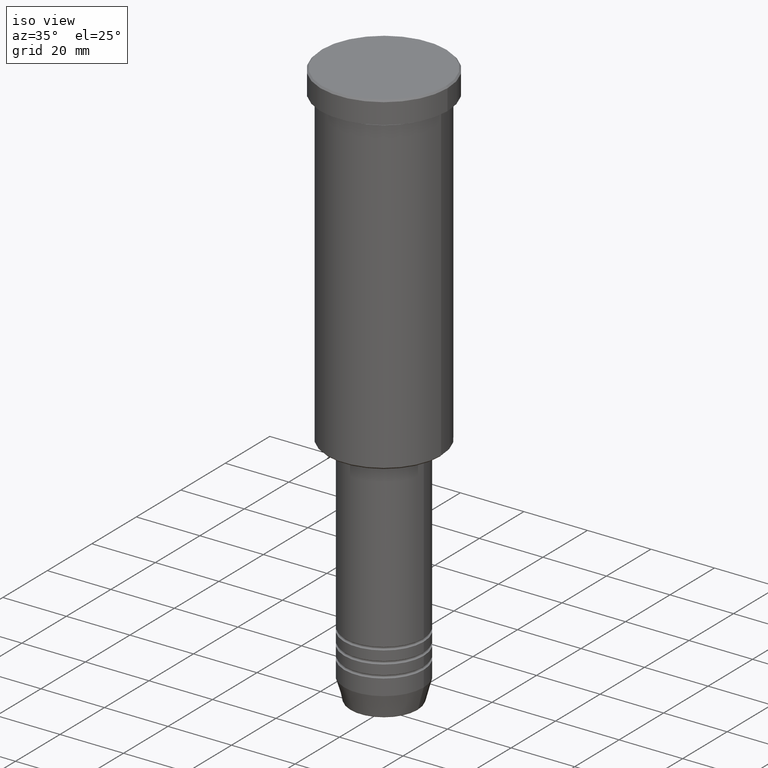
[diagram: clean part render]
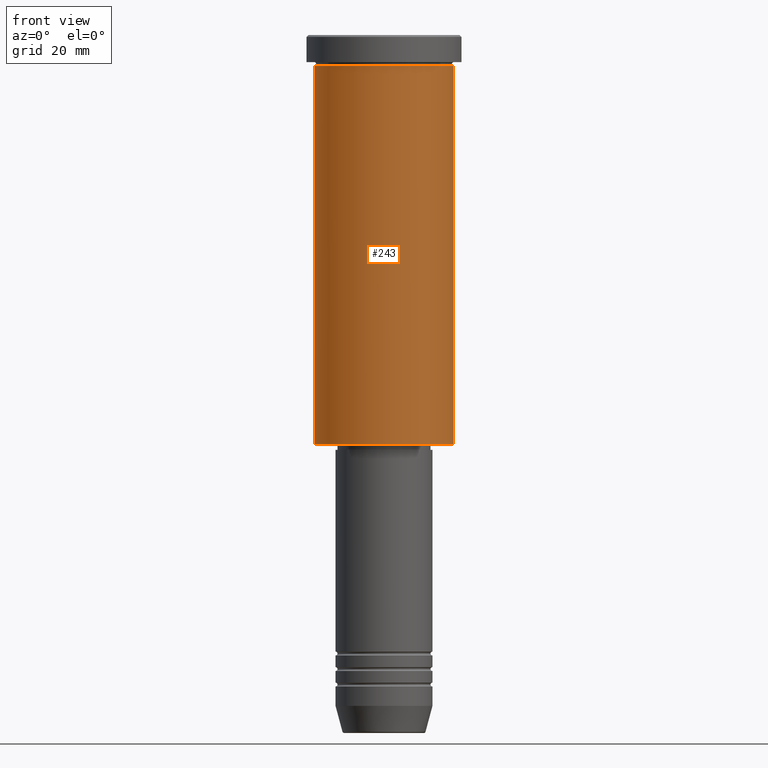
[diagram: tour spotlight — one face highlighted and labeled with its STEP entity id]
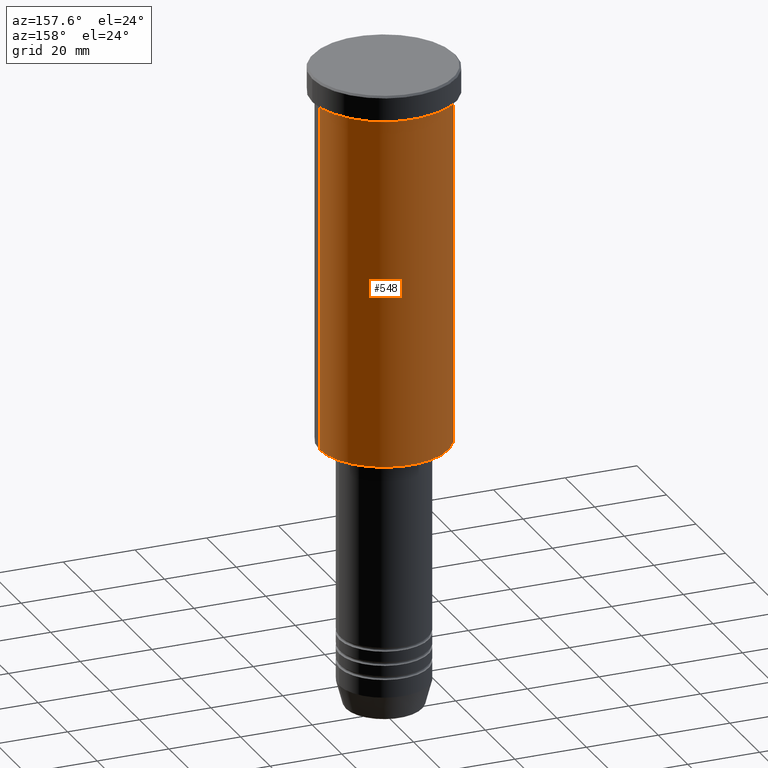
[diagram: tour spotlight — one face highlighted and labeled with its STEP entity id]
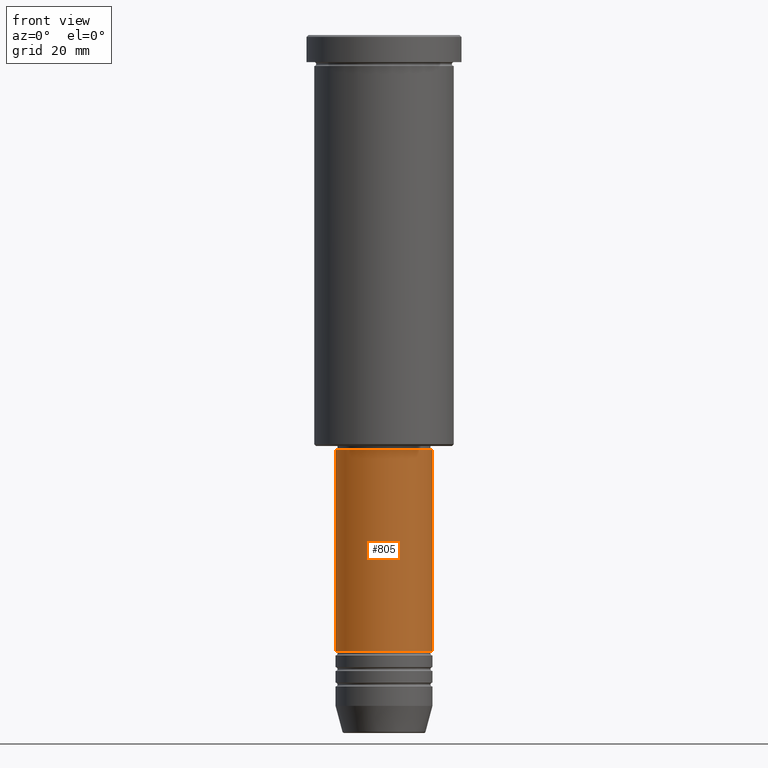
[diagram: tour spotlight — one face highlighted and labeled with its STEP entity id]
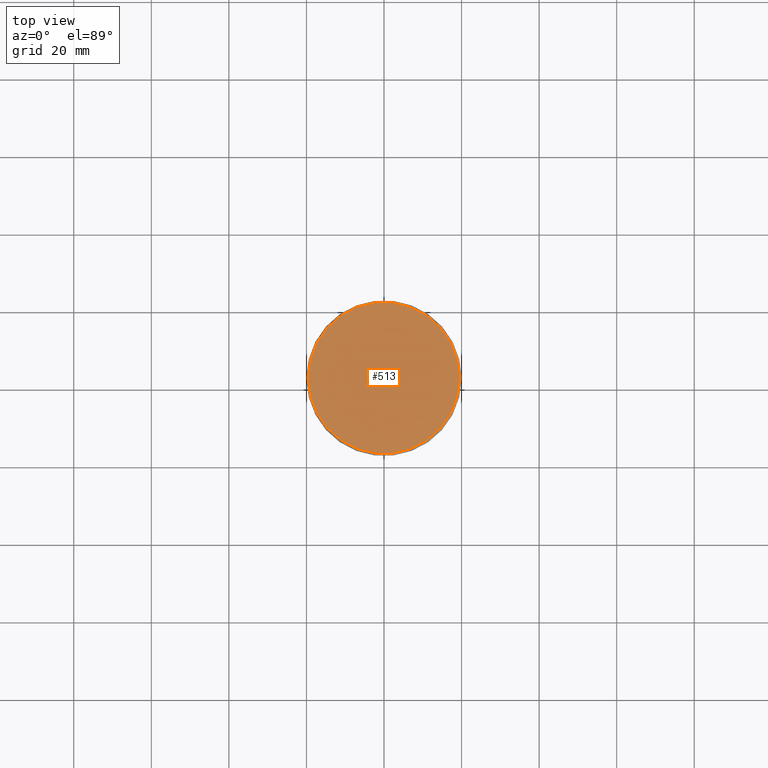
[diagram: tour spotlight — one face highlighted and labeled with its STEP entity id]
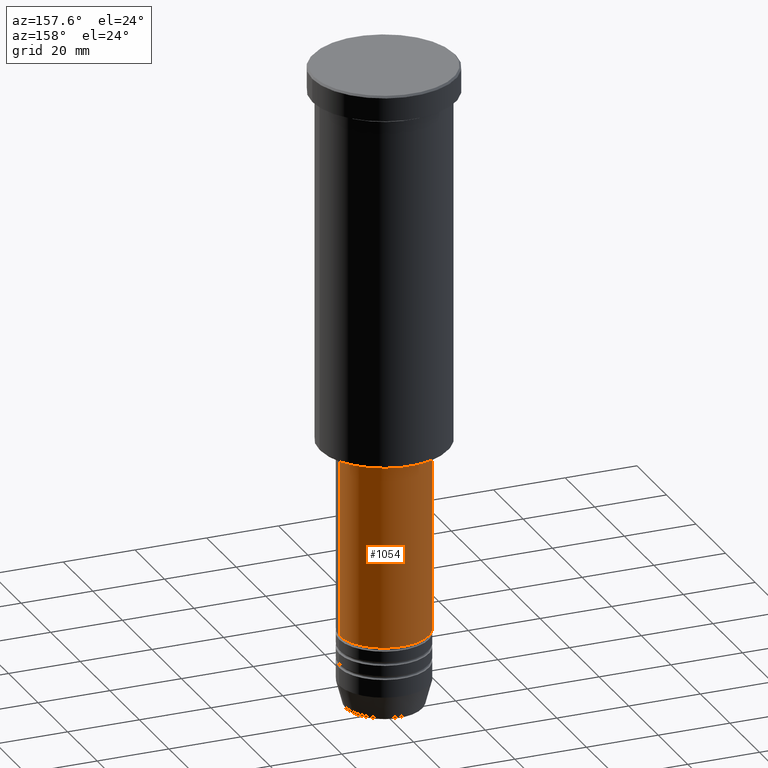
[diagram: tour spotlight — one face highlighted and labeled with its STEP entity id]
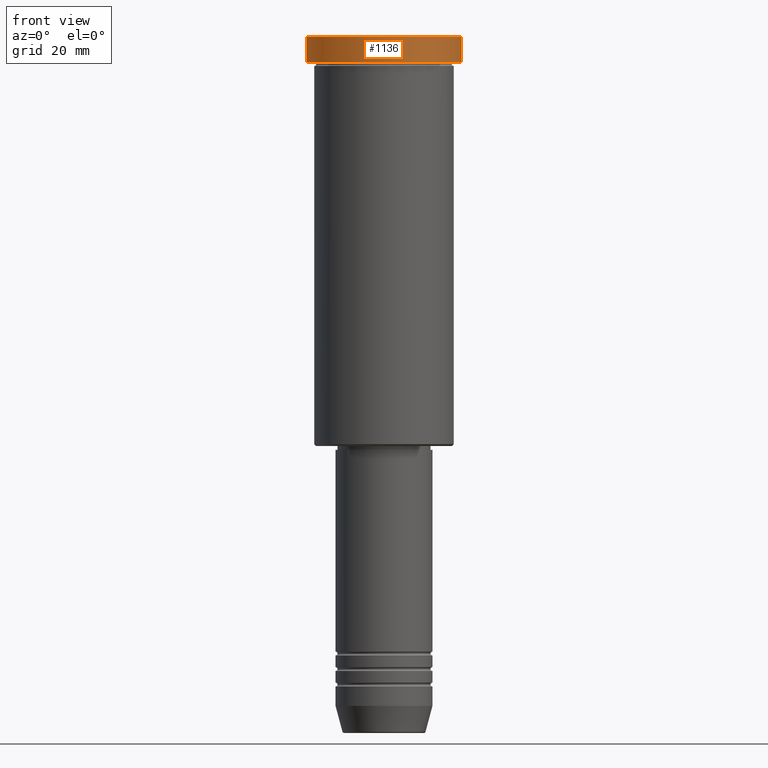
[diagram: tour spotlight — one face highlighted and labeled with its STEP entity id]
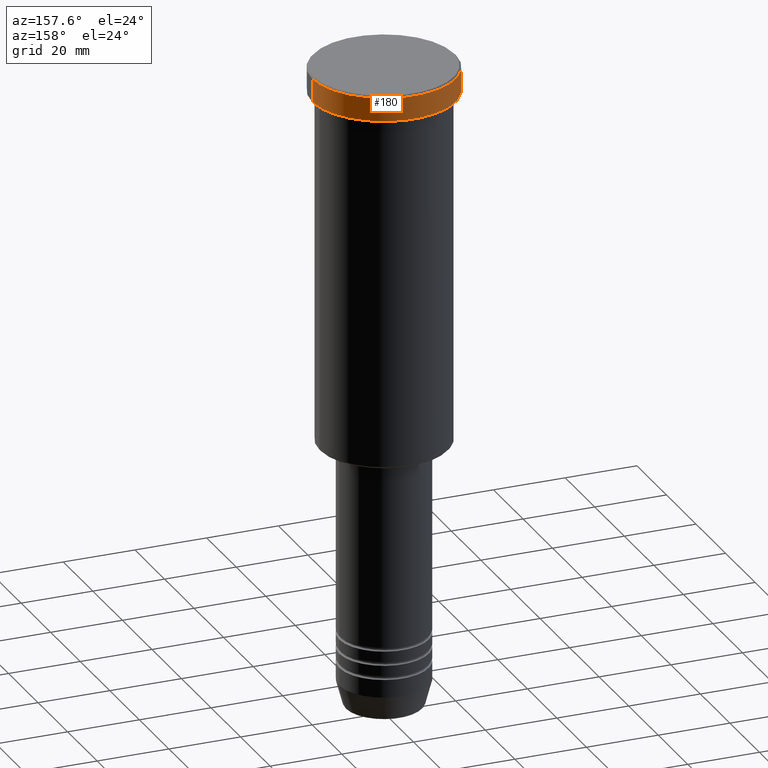
[diagram: tour spotlight — one face highlighted and labeled with its STEP entity id]
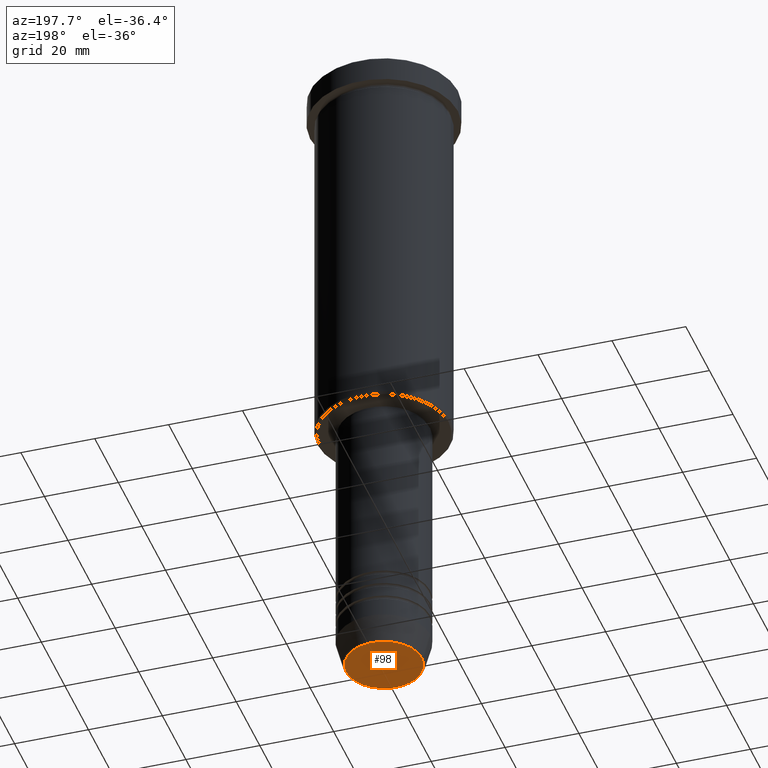
[diagram: tour spotlight — one face highlighted and labeled with its STEP entity id]
A machine part: a face-by-face anatomy tour. The part has 43 B-rep faces; the first image is the clean iso view, then the 8 largest visible faces are spotlighted one at a time (largest first), each with its STEP entity span.

Face 1 — front view, entity #243. In plain terms, the highlighted cylindrical surface (partial cylindrical patch) has radius 18 mm, axis along (-0, -0, 1).
Definition (entity closure, byte-faithful):
#4 = DIRECTION ( 'NONE',  ( -1.000000000000000000, 0.000000000000000000, 0.000000000000000000 ) ) ;
#6 = DIRECTION ( 'NONE',  ( -0.000000000000000000, -0.000000000000000000, 1.000000000000000000 ) ) ;
#30 = LINE ( 'NONE', #470, #590 ) ;
#59 = ORIENTED_EDGE ( 'NONE', *, *, #1152, .F. ) ;
#115 = DIRECTION ( 'NONE',  ( -0.000000000000000000, -0.000000000000000000, 1.000000000000000000 ) ) ;
#169 = DIRECTION ( 'NONE',  ( -0.000000000000000000, -0.000000000000000000, 1.000000000000000000 ) ) ;
#234 = CARTESIAN_POINT ( 'NONE',  ( -18.00000000000000000, 2.204364238465235428E-15, 0.000000000000000000 ) ) ;
#235 = EDGE_LOOP ( 'NONE', ( #59, #1067, #1061, #1182 ) ) ;
#243 = ADVANCED_FACE ( 'NONE', ( #798 ), #255, .T. ) ;
#255 = CYLINDRICAL_SURFACE ( 'NONE', #1115, 18.00000000000000000 ) ;
#264 = CARTESIAN_POINT ( 'NONE',  ( -18.00000000000000000, 2.204364238465235428E-15, -7.999999999999996447 ) ) ;
#269 = CIRCLE ( 'NONE', #368, 18.00000000000000000 ) ;
#365 = CIRCLE ( 'NONE', #1170, 18.00000000000000000 ) ;
#368 = AXIS2_PLACEMENT_3D ( 'NONE', #824, #169, #4 ) ;
#378 = CARTESIAN_POINT ( 'NONE',  ( 0.000000000000000000, 0.000000000000000000, -7.999999999999996447 ) ) ;
#412 = EDGE_CURVE ( 'NONE', #823, #659, #365, .T. ) ;
#468 = DIRECTION ( 'NONE',  ( 1.000000000000000000, 0.000000000000000000, 0.000000000000000000 ) ) ;
#470 = CARTESIAN_POINT ( 'NONE',  ( 18.00000000000000000, 0.000000000000000000, 0.000000000000000000 ) ) ;
#500 = DIRECTION ( 'NONE',  ( -0.000000000000000000, -0.000000000000000000, 1.000000000000000000 ) ) ;
#574 = CARTESIAN_POINT ( 'NONE',  ( 18.00000000000000000, 0.000000000000000000, -7.999999999999996447 ) ) ;
#590 = VECTOR ( 'NONE', #115, 1000.000000000000000 ) ;
#659 = VERTEX_POINT ( 'NONE', #574 ) ;
#690 = VECTOR ( 'NONE', #500, 1000.000000000000000 ) ;
#786 = DIRECTION ( 'NONE',  ( 1.000000000000000000, 0.000000000000000000, 0.000000000000000000 ) ) ;
#798 = FACE_OUTER_BOUND ( 'NONE', #235, .T. ) ;
#818 = CARTESIAN_POINT ( 'NONE',  ( -18.00000000000000000, 2.204364238465235428E-15, -105.4999999999999432 ) ) ;
#823 = VERTEX_POINT ( 'NONE', #264 ) ;
#824 = CARTESIAN_POINT ( 'NONE',  ( 0.000000000000000000, 0.000000000000000000, -105.4999999999999432 ) ) ;
#873 = LINE ( 'NONE', #234, #690 ) ;
#877 = VERTEX_POINT ( 'NONE', #818 ) ;
#895 = EDGE_CURVE ( 'NONE', #877, #1110, #269, .T. ) ;
#896 = CARTESIAN_POINT ( 'NONE',  ( 0.000000000000000000, 0.000000000000000000, 0.000000000000000000 ) ) ;
#902 = DIRECTION ( 'NONE',  ( -0.000000000000000000, -0.000000000000000000, 1.000000000000000000 ) ) ;
#979 = EDGE_CURVE ( 'NONE', #1110, #659, #30, .T. ) ;
#1061 = ORIENTED_EDGE ( 'NONE', *, *, #979, .T. ) ;
#1067 = ORIENTED_EDGE ( 'NONE', *, *, #895, .T. ) ;
#1110 = VERTEX_POINT ( 'NONE', #1130 ) ;
#1115 = AXIS2_PLACEMENT_3D ( 'NONE', #896, #902, #786 ) ;
#1130 = CARTESIAN_POINT ( 'NONE',  ( 18.00000000000000000, 0.000000000000000000, -105.4999999999999432 ) ) ;
#1152 = EDGE_CURVE ( 'NONE', #877, #823, #873, .T. ) ;
#1170 = AXIS2_PLACEMENT_3D ( 'NONE', #378, #6, #468 ) ;
#1182 = ORIENTED_EDGE ( 'NONE', *, *, #412, .F. ) ;

Face 2 — auxiliary view, entity #548. In plain terms, the highlighted cylindrical surface (partial cylindrical patch) has radius 18 mm, axis along (-0, -0, 1).
Definition (entity closure, byte-faithful):
#30 = LINE ( 'NONE', #470, #590 ) ;
#39 = CARTESIAN_POINT ( 'NONE',  ( 0.000000000000000000, 0.000000000000000000, 0.000000000000000000 ) ) ;
#99 = ORIENTED_EDGE ( 'NONE', *, *, #979, .F. ) ;
#115 = DIRECTION ( 'NONE',  ( -0.000000000000000000, -0.000000000000000000, 1.000000000000000000 ) ) ;
#116 = CYLINDRICAL_SURFACE ( 'NONE', #884, 18.00000000000000000 ) ;
#230 = EDGE_CURVE ( 'NONE', #659, #823, #982, .T. ) ;
#234 = CARTESIAN_POINT ( 'NONE',  ( -18.00000000000000000, 2.204364238465235428E-15, 0.000000000000000000 ) ) ;
#238 = DIRECTION ( 'NONE',  ( 1.000000000000000000, 0.000000000000000000, 0.000000000000000000 ) ) ;
#264 = CARTESIAN_POINT ( 'NONE',  ( -18.00000000000000000, 2.204364238465235428E-15, -7.999999999999996447 ) ) ;
#298 = DIRECTION ( 'NONE',  ( 1.000000000000000000, 0.000000000000000000, 0.000000000000000000 ) ) ;
#366 = AXIS2_PLACEMENT_3D ( 'NONE', #637, #1102, #644 ) ;
#371 = EDGE_LOOP ( 'NONE', ( #1024, #1162, #817, #99 ) ) ;
#384 = AXIS2_PLACEMENT_3D ( 'NONE', #1166, #814, #238 ) ;
#393 = DIRECTION ( 'NONE',  ( -0.000000000000000000, -0.000000000000000000, 1.000000000000000000 ) ) ;
#456 = EDGE_CURVE ( 'NONE', #1110, #877, #688, .T. ) ;
#470 = CARTESIAN_POINT ( 'NONE',  ( 18.00000000000000000, 0.000000000000000000, 0.000000000000000000 ) ) ;
#500 = DIRECTION ( 'NONE',  ( -0.000000000000000000, -0.000000000000000000, 1.000000000000000000 ) ) ;
#548 = ADVANCED_FACE ( 'NONE', ( #1050 ), #116, .T. ) ;
#574 = CARTESIAN_POINT ( 'NONE',  ( 18.00000000000000000, 0.000000000000000000, -7.999999999999996447 ) ) ;
#590 = VECTOR ( 'NONE', #115, 1000.000000000000000 ) ;
#637 = CARTESIAN_POINT ( 'NONE',  ( 0.000000000000000000, 0.000000000000000000, -105.4999999999999432 ) ) ;
#644 = DIRECTION ( 'NONE',  ( -1.000000000000000000, 0.000000000000000000, 0.000000000000000000 ) ) ;
#659 = VERTEX_POINT ( 'NONE', #574 ) ;
#688 = CIRCLE ( 'NONE', #366, 18.00000000000000000 ) ;
#690 = VECTOR ( 'NONE', #500, 1000.000000000000000 ) ;
#814 = DIRECTION ( 'NONE',  ( -0.000000000000000000, -0.000000000000000000, 1.000000000000000000 ) ) ;
#817 = ORIENTED_EDGE ( 'NONE', *, *, #230, .F. ) ;
#818 = CARTESIAN_POINT ( 'NONE',  ( -18.00000000000000000, 2.204364238465235428E-15, -105.4999999999999432 ) ) ;
#823 = VERTEX_POINT ( 'NONE', #264 ) ;
#873 = LINE ( 'NONE', #234, #690 ) ;
#877 = VERTEX_POINT ( 'NONE', #818 ) ;
#884 = AXIS2_PLACEMENT_3D ( 'NONE', #39, #393, #298 ) ;
#979 = EDGE_CURVE ( 'NONE', #1110, #659, #30, .T. ) ;
#982 = CIRCLE ( 'NONE', #384, 18.00000000000000000 ) ;
#1024 = ORIENTED_EDGE ( 'NONE', *, *, #456, .T. ) ;
#1050 = FACE_OUTER_BOUND ( 'NONE', #371, .T. ) ;
#1102 = DIRECTION ( 'NONE',  ( -0.000000000000000000, -0.000000000000000000, 1.000000000000000000 ) ) ;
#1110 = VERTEX_POINT ( 'NONE', #1130 ) ;
#1130 = CARTESIAN_POINT ( 'NONE',  ( 18.00000000000000000, 0.000000000000000000, -105.4999999999999432 ) ) ;
#1152 = EDGE_CURVE ( 'NONE', #877, #823, #873, .T. ) ;
#1162 = ORIENTED_EDGE ( 'NONE', *, *, #1152, .T. ) ;
#1166 = CARTESIAN_POINT ( 'NONE',  ( 0.000000000000000000, 0.000000000000000000, -7.999999999999996447 ) ) ;

Face 3 — front view, entity #805. In plain terms, the highlighted cylindrical surface (partial cylindrical patch) has radius 12.5 mm, axis along (-0, -0, 1).
Definition (entity closure, byte-faithful):
#16 = EDGE_CURVE ( 'NONE', #1116, #276, #710, .T. ) ;
#50 = EDGE_CURVE ( 'NONE', #703, #1116, #941, .T. ) ;
#64 = DIRECTION ( 'NONE',  ( -0.000000000000000000, -0.000000000000000000, 1.000000000000000000 ) ) ;
#90 = CARTESIAN_POINT ( 'NONE',  ( -12.50000000000000000, 1.530808498934191521E-15, -107.0000000000000142 ) ) ;
#112 = CARTESIAN_POINT ( 'NONE',  ( -12.50000000000000000, 1.530808498934191521E-15, 0.000000000000000000 ) ) ;
#147 = DIRECTION ( 'NONE',  ( 1.000000000000000000, 0.000000000000000000, 0.000000000000000000 ) ) ;
#192 = ORIENTED_EDGE ( 'NONE', *, *, #50, .T. ) ;
#213 = CARTESIAN_POINT ( 'NONE',  ( 0.000000000000000000, 0.000000000000000000, -107.0000000000000142 ) ) ;
#248 = CARTESIAN_POINT ( 'NONE',  ( -12.50000000000000000, 1.530808498934191521E-15, -159.0000000000000000 ) ) ;
#266 = VECTOR ( 'NONE', #662, 1000.000000000000000 ) ;
#276 = VERTEX_POINT ( 'NONE', #983 ) ;
#286 = AXIS2_PLACEMENT_3D ( 'NONE', #905, #816, #1180 ) ;
#291 = AXIS2_PLACEMENT_3D ( 'NONE', #213, #1117, #748 ) ;
#337 = EDGE_LOOP ( 'NONE', ( #789, #192, #581, #433 ) ) ;
#357 = DIRECTION ( 'NONE',  ( -0.000000000000000000, -0.000000000000000000, 1.000000000000000000 ) ) ;
#360 = LINE ( 'NONE', #112, #266 ) ;
#433 = ORIENTED_EDGE ( 'NONE', *, *, #1103, .F. ) ;
#504 = EDGE_CURVE ( 'NONE', #703, #954, #360, .T. ) ;
#581 = ORIENTED_EDGE ( 'NONE', *, *, #16, .T. ) ;
#662 = DIRECTION ( 'NONE',  ( -0.000000000000000000, -0.000000000000000000, 1.000000000000000000 ) ) ;
#675 = CARTESIAN_POINT ( 'NONE',  ( 12.50000000000000000, 0.000000000000000000, -159.0000000000000000 ) ) ;
#703 = VERTEX_POINT ( 'NONE', #248 ) ;
#706 = VECTOR ( 'NONE', #357, 1000.000000000000000 ) ;
#710 = LINE ( 'NONE', #1081, #706 ) ;
#748 = DIRECTION ( 'NONE',  ( 1.000000000000000000, 0.000000000000000000, 0.000000000000000000 ) ) ;
#779 = CYLINDRICAL_SURFACE ( 'NONE', #1097, 12.50000000000000000 ) ;
#789 = ORIENTED_EDGE ( 'NONE', *, *, #504, .F. ) ;
#805 = ADVANCED_FACE ( 'NONE', ( #1075 ), #779, .T. ) ;
#816 = DIRECTION ( 'NONE',  ( -0.000000000000000000, -0.000000000000000000, 1.000000000000000000 ) ) ;
#880 = CARTESIAN_POINT ( 'NONE',  ( 0.000000000000000000, 0.000000000000000000, 0.000000000000000000 ) ) ;
#905 = CARTESIAN_POINT ( 'NONE',  ( 0.000000000000000000, 0.000000000000000000, -159.0000000000000000 ) ) ;
#941 = CIRCLE ( 'NONE', #286, 12.50000000000000000 ) ;
#954 = VERTEX_POINT ( 'NONE', #90 ) ;
#983 = CARTESIAN_POINT ( 'NONE',  ( 12.50000000000000000, 0.000000000000000000, -107.0000000000000142 ) ) ;
#1075 = FACE_OUTER_BOUND ( 'NONE', #337, .T. ) ;
#1081 = CARTESIAN_POINT ( 'NONE',  ( 12.50000000000000000, 0.000000000000000000, 0.000000000000000000 ) ) ;
#1097 = AXIS2_PLACEMENT_3D ( 'NONE', #880, #64, #147 ) ;
#1103 = EDGE_CURVE ( 'NONE', #954, #276, #1134, .T. ) ;
#1116 = VERTEX_POINT ( 'NONE', #675 ) ;
#1117 = DIRECTION ( 'NONE',  ( -0.000000000000000000, -0.000000000000000000, 1.000000000000000000 ) ) ;
#1134 = CIRCLE ( 'NONE', #291, 12.50000000000000000 ) ;
#1180 = DIRECTION ( 'NONE',  ( 1.000000000000000000, 0.000000000000000000, 0.000000000000000000 ) ) ;

Face 4 — top view, entity #513. In plain terms, the highlighted planar face has unit normal (0, -0, 1).
Definition (entity closure, byte-faithful):
#36 = CARTESIAN_POINT ( 'NONE',  ( 0.000000000000000000, 0.000000000000000000, 0.000000000000000000 ) ) ;
#48 = PLANE ( 'NONE',  #632 ) ;
#81 = AXIS2_PLACEMENT_3D ( 'NONE', #1126, #765, #202 ) ;
#120 = CARTESIAN_POINT ( 'NONE',  ( 0.000000000000000000, 0.000000000000000000, 0.000000000000000000 ) ) ;
#125 = DIRECTION ( 'NONE',  ( 1.000000000000000000, 0.000000000000000000, 0.000000000000000000 ) ) ;
#137 = DIRECTION ( 'NONE',  ( 0.000000000000000000, -0.000000000000000000, 1.000000000000000000 ) ) ;
#162 = ORIENTED_EDGE ( 'NONE', *, *, #999, .T. ) ;
#202 = DIRECTION ( 'NONE',  ( 1.000000000000000000, 0.000000000000000000, 0.000000000000000000 ) ) ;
#258 = VERTEX_POINT ( 'NONE', #1084 ) ;
#390 = VERTEX_POINT ( 'NONE', #540 ) ;
#513 = ADVANCED_FACE ( 'NONE', ( #852 ), #48, .T. ) ;
#540 = CARTESIAN_POINT ( 'NONE',  ( -19.50000000000001776, 0.000000000000000000, 0.000000000000000000 ) ) ;
#583 = EDGE_CURVE ( 'NONE', #390, #258, #709, .T. ) ;
#632 = AXIS2_PLACEMENT_3D ( 'NONE', #36, #137, #125 ) ;
#635 = AXIS2_PLACEMENT_3D ( 'NONE', #120, #660, #772 ) ;
#656 = CIRCLE ( 'NONE', #635, 19.50000000000001776 ) ;
#660 = DIRECTION ( 'NONE',  ( -0.000000000000000000, -0.000000000000000000, 1.000000000000000000 ) ) ;
#697 = EDGE_LOOP ( 'NONE', ( #728, #162 ) ) ;
#709 = CIRCLE ( 'NONE', #81, 19.50000000000001776 ) ;
#728 = ORIENTED_EDGE ( 'NONE', *, *, #583, .T. ) ;
#765 = DIRECTION ( 'NONE',  ( -0.000000000000000000, -0.000000000000000000, 1.000000000000000000 ) ) ;
#772 = DIRECTION ( 'NONE',  ( 1.000000000000000000, 0.000000000000000000, 0.000000000000000000 ) ) ;
#852 = FACE_OUTER_BOUND ( 'NONE', #697, .T. ) ;
#999 = EDGE_CURVE ( 'NONE', #258, #390, #656, .T. ) ;
#1084 = CARTESIAN_POINT ( 'NONE',  ( 19.50000000000001776, 2.418677428316023515E-15, 0.000000000000000000 ) ) ;
#1126 = CARTESIAN_POINT ( 'NONE',  ( 0.000000000000000000, 0.000000000000000000, 0.000000000000000000 ) ) ;

Face 5 — auxiliary view, entity #1054. In plain terms, the highlighted cylindrical surface (partial cylindrical patch) has radius 12.5 mm, axis along (-0, -0, 1).
Definition (entity closure, byte-faithful):
#16 = EDGE_CURVE ( 'NONE', #1116, #276, #710, .T. ) ;
#90 = CARTESIAN_POINT ( 'NONE',  ( -12.50000000000000000, 1.530808498934191521E-15, -107.0000000000000142 ) ) ;
#112 = CARTESIAN_POINT ( 'NONE',  ( -12.50000000000000000, 1.530808498934191521E-15, 0.000000000000000000 ) ) ;
#118 = CIRCLE ( 'NONE', #731, 12.50000000000000000 ) ;
#128 = CARTESIAN_POINT ( 'NONE',  ( 0.000000000000000000, 0.000000000000000000, 0.000000000000000000 ) ) ;
#168 = ORIENTED_EDGE ( 'NONE', *, *, #16, .F. ) ;
#208 = DIRECTION ( 'NONE',  ( -0.000000000000000000, -0.000000000000000000, 1.000000000000000000 ) ) ;
#248 = CARTESIAN_POINT ( 'NONE',  ( -12.50000000000000000, 1.530808498934191521E-15, -159.0000000000000000 ) ) ;
#266 = VECTOR ( 'NONE', #662, 1000.000000000000000 ) ;
#276 = VERTEX_POINT ( 'NONE', #983 ) ;
#283 = ORIENTED_EDGE ( 'NONE', *, *, #504, .T. ) ;
#357 = DIRECTION ( 'NONE',  ( -0.000000000000000000, -0.000000000000000000, 1.000000000000000000 ) ) ;
#360 = LINE ( 'NONE', #112, #266 ) ;
#466 = EDGE_LOOP ( 'NONE', ( #712, #283, #469, #168 ) ) ;
#467 = DIRECTION ( 'NONE',  ( -0.000000000000000000, -0.000000000000000000, 1.000000000000000000 ) ) ;
#469 = ORIENTED_EDGE ( 'NONE', *, *, #1086, .F. ) ;
#478 = FACE_OUTER_BOUND ( 'NONE', #466, .T. ) ;
#504 = EDGE_CURVE ( 'NONE', #703, #954, #360, .T. ) ;
#561 = CARTESIAN_POINT ( 'NONE',  ( 0.000000000000000000, 0.000000000000000000, -107.0000000000000142 ) ) ;
#567 = DIRECTION ( 'NONE',  ( 1.000000000000000000, 0.000000000000000000, 0.000000000000000000 ) ) ;
#614 = CIRCLE ( 'NONE', #1026, 12.50000000000000000 ) ;
#619 = EDGE_CURVE ( 'NONE', #1116, #703, #118, .T. ) ;
#662 = DIRECTION ( 'NONE',  ( -0.000000000000000000, -0.000000000000000000, 1.000000000000000000 ) ) ;
#669 = CARTESIAN_POINT ( 'NONE',  ( 0.000000000000000000, 0.000000000000000000, -159.0000000000000000 ) ) ;
#675 = CARTESIAN_POINT ( 'NONE',  ( 12.50000000000000000, 0.000000000000000000, -159.0000000000000000 ) ) ;
#703 = VERTEX_POINT ( 'NONE', #248 ) ;
#706 = VECTOR ( 'NONE', #357, 1000.000000000000000 ) ;
#710 = LINE ( 'NONE', #1081, #706 ) ;
#712 = ORIENTED_EDGE ( 'NONE', *, *, #619, .T. ) ;
#731 = AXIS2_PLACEMENT_3D ( 'NONE', #669, #757, #567 ) ;
#752 = AXIS2_PLACEMENT_3D ( 'NONE', #128, #467, #840 ) ;
#757 = DIRECTION ( 'NONE',  ( -0.000000000000000000, -0.000000000000000000, 1.000000000000000000 ) ) ;
#840 = DIRECTION ( 'NONE',  ( 1.000000000000000000, 0.000000000000000000, 0.000000000000000000 ) ) ;
#951 = DIRECTION ( 'NONE',  ( 1.000000000000000000, 0.000000000000000000, 0.000000000000000000 ) ) ;
#954 = VERTEX_POINT ( 'NONE', #90 ) ;
#983 = CARTESIAN_POINT ( 'NONE',  ( 12.50000000000000000, 0.000000000000000000, -107.0000000000000142 ) ) ;
#1026 = AXIS2_PLACEMENT_3D ( 'NONE', #561, #208, #951 ) ;
#1048 = CYLINDRICAL_SURFACE ( 'NONE', #752, 12.50000000000000000 ) ;
#1054 = ADVANCED_FACE ( 'NONE', ( #478 ), #1048, .T. ) ;
#1081 = CARTESIAN_POINT ( 'NONE',  ( 12.50000000000000000, 0.000000000000000000, 0.000000000000000000 ) ) ;
#1086 = EDGE_CURVE ( 'NONE', #276, #954, #614, .T. ) ;
#1116 = VERTEX_POINT ( 'NONE', #675 ) ;

Face 6 — front view, entity #1136. In plain terms, the highlighted cylindrical surface (partial cylindrical patch) has radius 20 mm, axis along (-0, -0, 1).
Definition (entity closure, byte-faithful):
#5 = EDGE_CURVE ( 'NONE', #1145, #783, #471, .T. ) ;
#24 = AXIS2_PLACEMENT_3D ( 'NONE', #1098, #77, #1003 ) ;
#77 = DIRECTION ( 'NONE',  ( -0.000000000000000000, -0.000000000000000000, 1.000000000000000000 ) ) ;
#163 = ORIENTED_EDGE ( 'NONE', *, *, #936, .T. ) ;
#225 = VERTEX_POINT ( 'NONE', #340 ) ;
#226 = CARTESIAN_POINT ( 'NONE',  ( 0.000000000000000000, 0.000000000000000000, 0.000000000000000000 ) ) ;
#228 = AXIS2_PLACEMENT_3D ( 'NONE', #532, #927, #909 ) ;
#250 = VECTOR ( 'NONE', #573, 1000.000000000000000 ) ;
#294 = CARTESIAN_POINT ( 'NONE',  ( -20.00000000000000000, 2.449293598294706513E-15, 0.000000000000000000 ) ) ;
#312 = LINE ( 'NONE', #294, #250 ) ;
#323 = ORIENTED_EDGE ( 'NONE', *, *, #5, .T. ) ;
#332 = DIRECTION ( 'NONE',  ( 1.000000000000000000, 0.000000000000000000, 0.000000000000000000 ) ) ;
#340 = CARTESIAN_POINT ( 'NONE',  ( -20.00000000000000000, 2.449293598294706513E-15, -0.4999999999999970024 ) ) ;
#363 = LINE ( 'NONE', #920, #672 ) ;
#413 = ORIENTED_EDGE ( 'NONE', *, *, #949, .T. ) ;
#414 = CARTESIAN_POINT ( 'NONE',  ( 20.00000000000000000, 0.000000000000000000, -6.999999999999995559 ) ) ;
#471 = CIRCLE ( 'NONE', #24, 20.00000000000000000 ) ;
#493 = CARTESIAN_POINT ( 'NONE',  ( -20.00000000000000000, 2.449293598294706513E-15, -6.999999999999995559 ) ) ;
#505 = VERTEX_POINT ( 'NONE', #947 ) ;
#532 = CARTESIAN_POINT ( 'NONE',  ( 0.000000000000000000, 0.000000000000000000, -0.4999999999999970024 ) ) ;
#573 = DIRECTION ( 'NONE',  ( -0.000000000000000000, -0.000000000000000000, 1.000000000000000000 ) ) ;
#582 = FACE_OUTER_BOUND ( 'NONE', #1074, .T. ) ;
#672 = VECTOR ( 'NONE', #733, 1000.000000000000000 ) ;
#733 = DIRECTION ( 'NONE',  ( -0.000000000000000000, -0.000000000000000000, 1.000000000000000000 ) ) ;
#783 = VERTEX_POINT ( 'NONE', #414 ) ;
#790 = DIRECTION ( 'NONE',  ( -0.000000000000000000, -0.000000000000000000, 1.000000000000000000 ) ) ;
#909 = DIRECTION ( 'NONE',  ( 1.000000000000000000, 0.000000000000000000, 0.000000000000000000 ) ) ;
#920 = CARTESIAN_POINT ( 'NONE',  ( 20.00000000000000000, 0.000000000000000000, 0.000000000000000000 ) ) ;
#927 = DIRECTION ( 'NONE',  ( 0.000000000000000000, 0.000000000000000000, -1.000000000000000000 ) ) ;
#936 = EDGE_CURVE ( 'NONE', #783, #505, #363, .T. ) ;
#946 = CIRCLE ( 'NONE', #228, 20.00000000000000000 ) ;
#947 = CARTESIAN_POINT ( 'NONE',  ( 20.00000000000000000, 0.000000000000000000, -0.4999999999999970024 ) ) ;
#949 = EDGE_CURVE ( 'NONE', #505, #225, #946, .T. ) ;
#987 = EDGE_CURVE ( 'NONE', #1145, #225, #312, .T. ) ;
#1003 = DIRECTION ( 'NONE',  ( 1.000000000000000000, 0.000000000000000000, 0.000000000000000000 ) ) ;
#1074 = EDGE_LOOP ( 'NONE', ( #1167, #323, #163, #413 ) ) ;
#1098 = CARTESIAN_POINT ( 'NONE',  ( 0.000000000000000000, 0.000000000000000000, -6.999999999999995559 ) ) ;
#1136 = ADVANCED_FACE ( 'NONE', ( #582 ), #1158, .T. ) ;
#1145 = VERTEX_POINT ( 'NONE', #493 ) ;
#1158 = CYLINDRICAL_SURFACE ( 'NONE', #1175, 20.00000000000000000 ) ;
#1167 = ORIENTED_EDGE ( 'NONE', *, *, #987, .F. ) ;
#1175 = AXIS2_PLACEMENT_3D ( 'NONE', #226, #790, #332 ) ;

Face 7 — auxiliary view, entity #180. In plain terms, the highlighted cylindrical surface (partial cylindrical patch) has radius 20 mm, axis along (-0, -0, 1).
Definition (entity closure, byte-faithful):
#15 = CARTESIAN_POINT ( 'NONE',  ( 0.000000000000000000, 0.000000000000000000, -6.999999999999995559 ) ) ;
#173 = AXIS2_PLACEMENT_3D ( 'NONE', #346, #1083, #977 ) ;
#180 = ADVANCED_FACE ( 'NONE', ( #555 ), #1147, .T. ) ;
#221 = DIRECTION ( 'NONE',  ( 1.000000000000000000, 0.000000000000000000, 0.000000000000000000 ) ) ;
#225 = VERTEX_POINT ( 'NONE', #340 ) ;
#250 = VECTOR ( 'NONE', #573, 1000.000000000000000 ) ;
#294 = CARTESIAN_POINT ( 'NONE',  ( -20.00000000000000000, 2.449293598294706513E-15, 0.000000000000000000 ) ) ;
#312 = LINE ( 'NONE', #294, #250 ) ;
#320 = CARTESIAN_POINT ( 'NONE',  ( 0.000000000000000000, 0.000000000000000000, 0.000000000000000000 ) ) ;
#340 = CARTESIAN_POINT ( 'NONE',  ( -20.00000000000000000, 2.449293598294706513E-15, -0.4999999999999970024 ) ) ;
#346 = CARTESIAN_POINT ( 'NONE',  ( 0.000000000000000000, 0.000000000000000000, -0.4999999999999970024 ) ) ;
#363 = LINE ( 'NONE', #920, #672 ) ;
#367 = DIRECTION ( 'NONE',  ( 1.000000000000000000, 0.000000000000000000, 0.000000000000000000 ) ) ;
#392 = EDGE_CURVE ( 'NONE', #783, #1145, #653, .T. ) ;
#414 = CARTESIAN_POINT ( 'NONE',  ( 20.00000000000000000, 0.000000000000000000, -6.999999999999995559 ) ) ;
#493 = CARTESIAN_POINT ( 'NONE',  ( -20.00000000000000000, 2.449293598294706513E-15, -6.999999999999995559 ) ) ;
#505 = VERTEX_POINT ( 'NONE', #947 ) ;
#523 = ORIENTED_EDGE ( 'NONE', *, *, #392, .T. ) ;
#550 = AXIS2_PLACEMENT_3D ( 'NONE', #15, #931, #367 ) ;
#555 = FACE_OUTER_BOUND ( 'NONE', #604, .T. ) ;
#573 = DIRECTION ( 'NONE',  ( -0.000000000000000000, -0.000000000000000000, 1.000000000000000000 ) ) ;
#584 = ORIENTED_EDGE ( 'NONE', *, *, #987, .T. ) ;
#604 = EDGE_LOOP ( 'NONE', ( #523, #584, #610, #1042 ) ) ;
#610 = ORIENTED_EDGE ( 'NONE', *, *, #799, .T. ) ;
#653 = CIRCLE ( 'NONE', #550, 20.00000000000000000 ) ;
#672 = VECTOR ( 'NONE', #733, 1000.000000000000000 ) ;
#711 = CIRCLE ( 'NONE', #173, 20.00000000000000000 ) ;
#733 = DIRECTION ( 'NONE',  ( -0.000000000000000000, -0.000000000000000000, 1.000000000000000000 ) ) ;
#774 = DIRECTION ( 'NONE',  ( -0.000000000000000000, -0.000000000000000000, 1.000000000000000000 ) ) ;
#783 = VERTEX_POINT ( 'NONE', #414 ) ;
#799 = EDGE_CURVE ( 'NONE', #225, #505, #711, .T. ) ;
#920 = CARTESIAN_POINT ( 'NONE',  ( 20.00000000000000000, 0.000000000000000000, 0.000000000000000000 ) ) ;
#931 = DIRECTION ( 'NONE',  ( -0.000000000000000000, -0.000000000000000000, 1.000000000000000000 ) ) ;
#936 = EDGE_CURVE ( 'NONE', #783, #505, #363, .T. ) ;
#947 = CARTESIAN_POINT ( 'NONE',  ( 20.00000000000000000, 0.000000000000000000, -0.4999999999999970024 ) ) ;
#963 = AXIS2_PLACEMENT_3D ( 'NONE', #320, #774, #221 ) ;
#977 = DIRECTION ( 'NONE',  ( 1.000000000000000000, 0.000000000000000000, 0.000000000000000000 ) ) ;
#987 = EDGE_CURVE ( 'NONE', #1145, #225, #312, .T. ) ;
#1042 = ORIENTED_EDGE ( 'NONE', *, *, #936, .F. ) ;
#1083 = DIRECTION ( 'NONE',  ( 0.000000000000000000, 0.000000000000000000, -1.000000000000000000 ) ) ;
#1145 = VERTEX_POINT ( 'NONE', #493 ) ;
#1147 = CYLINDRICAL_SURFACE ( 'NONE', #963, 20.00000000000000000 ) ;

Face 8 — auxiliary view, entity #98. In plain terms, the highlighted planar face has unit normal (0, -0, 1).
Definition (entity closure, byte-faithful):
#78 = AXIS2_PLACEMENT_3D ( 'NONE', #191, #768, #1135 ) ;
#84 = EDGE_CURVE ( 'NONE', #454, #518, #959, .T. ) ;
#98 = ADVANCED_FACE ( 'NONE', ( #310 ), #966, .F. ) ;
#108 = CARTESIAN_POINT ( 'NONE',  ( -10.24069215899266538, 1.283696036640842967E-15, -180.0000000000000000 ) ) ;
#109 = DIRECTION ( 'NONE',  ( 0.000000000000000000, -0.000000000000000000, 1.000000000000000000 ) ) ;
#133 = ORIENTED_EDGE ( 'NONE', *, *, #84, .T. ) ;
#144 = DIRECTION ( 'NONE',  ( 0.000000000000000000, 0.000000000000000000, -1.000000000000000000 ) ) ;
#191 = CARTESIAN_POINT ( 'NONE',  ( 0.000000000000000000, 0.000000000000000000, -180.0000000000000000 ) ) ;
#310 = FACE_OUTER_BOUND ( 'NONE', #592, .T. ) ;
#336 = EDGE_CURVE ( 'NONE', #518, #454, #1128, .T. ) ;
#405 = DIRECTION ( 'NONE',  ( 1.000000000000000000, 0.000000000000000000, 0.000000000000000000 ) ) ;
#454 = VERTEX_POINT ( 'NONE', #108 ) ;
#518 = VERTEX_POINT ( 'NONE', #1139 ) ;
#566 = AXIS2_PLACEMENT_3D ( 'NONE', #832, #109, #405 ) ;
#568 = AXIS2_PLACEMENT_3D ( 'NONE', #973, #144, #720 ) ;
#592 = EDGE_LOOP ( 'NONE', ( #937, #133 ) ) ;
#720 = DIRECTION ( 'NONE',  ( 1.000000000000000000, 0.000000000000000000, 0.000000000000000000 ) ) ;
#768 = DIRECTION ( 'NONE',  ( 0.000000000000000000, 0.000000000000000000, -1.000000000000000000 ) ) ;
#832 = CARTESIAN_POINT ( 'NONE',  ( 0.000000000000000000, 0.000000000000000000, -180.0000000000000000 ) ) ;
#937 = ORIENTED_EDGE ( 'NONE', *, *, #336, .T. ) ;
#959 = CIRCLE ( 'NONE', #78, 10.24069215899266538 ) ;
#966 = PLANE ( 'NONE',  #566 ) ;
#973 = CARTESIAN_POINT ( 'NONE',  ( 0.000000000000000000, 0.000000000000000000, -180.0000000000000000 ) ) ;
#1128 = CIRCLE ( 'NONE', #568, 10.24069215899266538 ) ;
#1135 = DIRECTION ( 'NONE',  ( 1.000000000000000000, 0.000000000000000000, 0.000000000000000000 ) ) ;
#1139 = CARTESIAN_POINT ( 'NONE',  ( 10.24069215899266538, 0.000000000000000000, -180.0000000000000000 ) ) ;